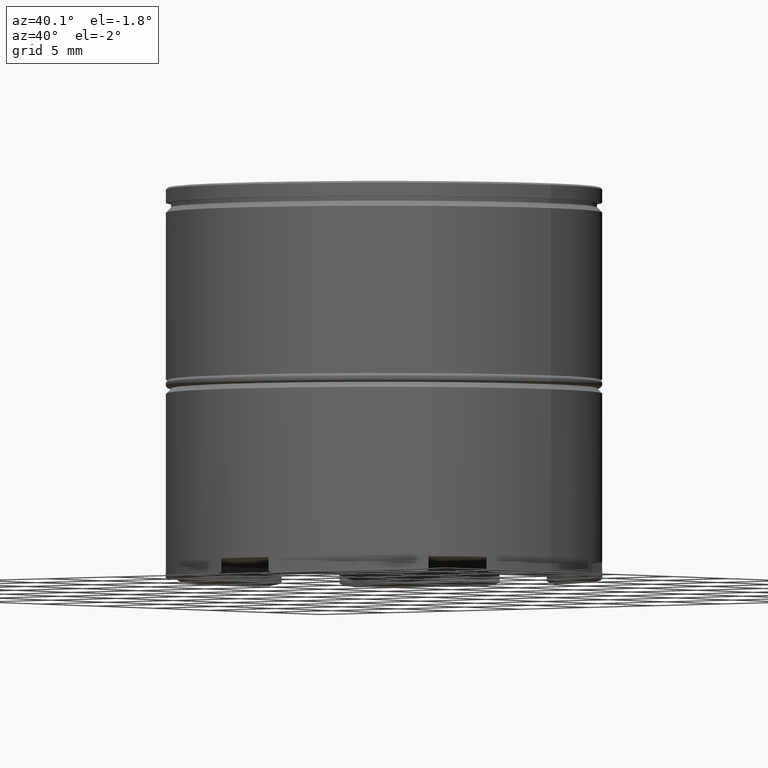
[diagram: clean part render]
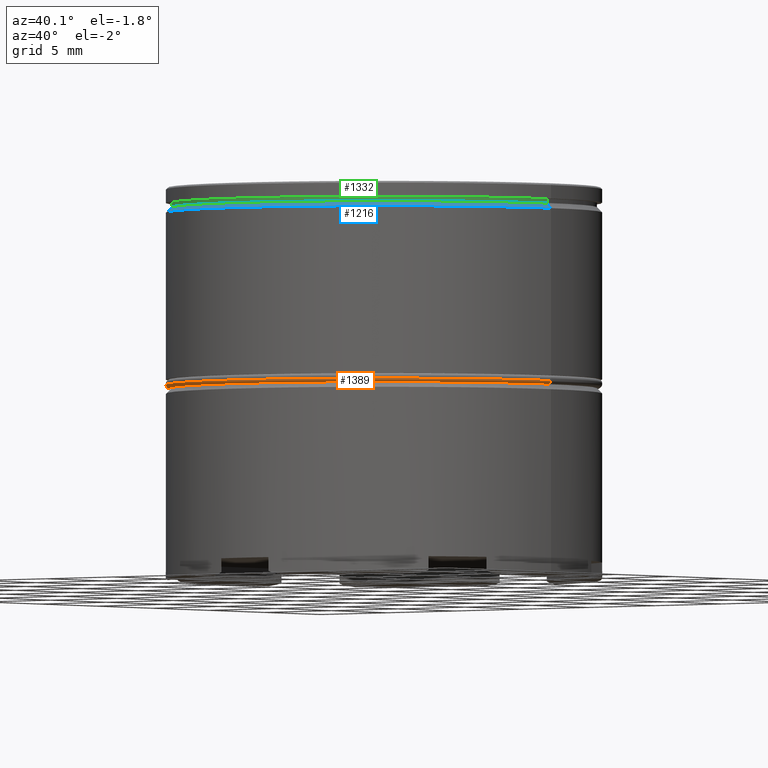
[diagram: same view with three faces highlighted in distinct colors, each labeled with its STEP entity id]
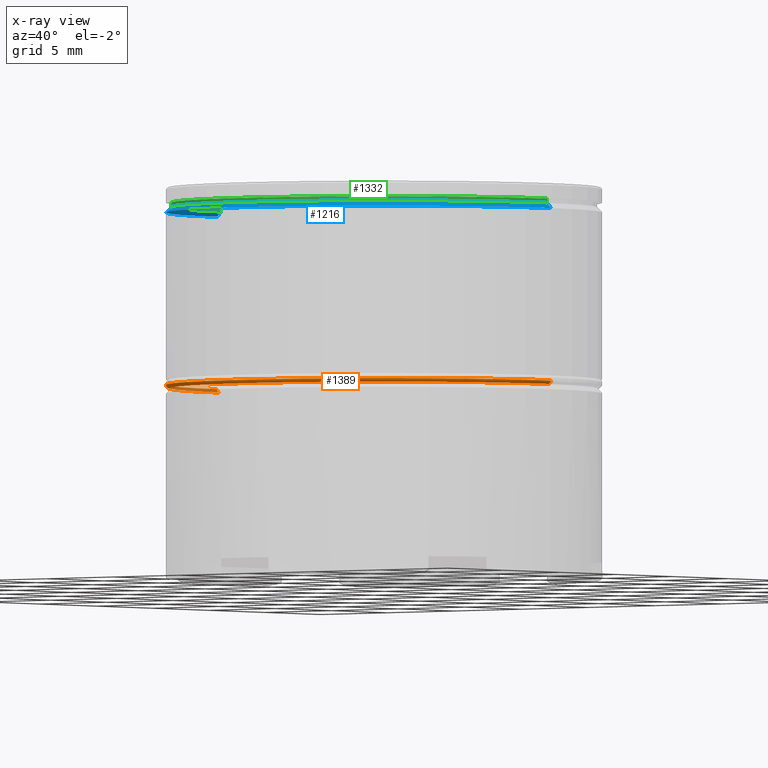
[diagram: x-ray of the same camera — body ghosted, the three highlighted faces saturated]
A machine part, auxiliary view with three faces highlighted in distinct colors.
The next image is the same camera in x-ray (body ghosted, the three faces saturated) — at least one of them is partly hidden behind the body in this view.
Their STEP definitions:

[orange] entity #1389 — the highlighted toroidal blend (fillet) surface has major radius 12.3 mm and minor (blend) radius 0.2 mm.
#21 = EDGE_CURVE ( 'NONE', #110, #364, #291, .T. ) ;
#50 = DIRECTION ( 'NONE',  ( 1.000000000000000000, 0.000000000000000000, 0.000000000000000000 ) ) ;
#89 = DIRECTION ( 'NONE',  ( -0.000000000000000000, -0.000000000000000000, -1.000000000000000000 ) ) ;
#110 = VERTEX_POINT ( 'NONE', #936 ) ;
#126 = CARTESIAN_POINT ( 'NONE',  ( 12.30000000000000071, 0.000000000000000000, -11.29999999999999716 ) ) ;
#175 = CARTESIAN_POINT ( 'NONE',  ( 0.000000000000000000, 0.000000000000000000, -11.29999999999999716 ) ) ;
#183 = CIRCLE ( 'NONE', #1316, 0.2000000000000005107 ) ;
#224 = DIRECTION ( 'NONE',  ( 0.000000000000000000, 0.000000000000000000, 1.000000000000000000 ) ) ;
#225 = CARTESIAN_POINT ( 'NONE',  ( 0.000000000000000000, 0.000000000000000000, -11.49999999999999822 ) ) ;
#266 = CARTESIAN_POINT ( 'NONE',  ( -12.30000000000000071, 1.518562030942717967E-15, -11.49999999999999822 ) ) ;
#270 = AXIS2_PLACEMENT_3D ( 'NONE', #225, #89, #475 ) ;
#282 = EDGE_CURVE ( 'NONE', #478, #364, #1287, .T. ) ;
#291 = CIRCLE ( 'NONE', #1244, 0.2000000000000005107 ) ;
#364 = VERTEX_POINT ( 'NONE', #1143 ) ;
#456 = ORIENTED_EDGE ( 'NONE', *, *, #282, .F. ) ;
#475 = DIRECTION ( 'NONE',  ( 1.000000000000000000, 0.000000000000000000, 0.000000000000000000 ) ) ;
#478 = VERTEX_POINT ( 'NONE', #1180 ) ;
#509 = TOROIDAL_SURFACE ( 'NONE', #1029, 12.30000000000000071, 0.2000000000000000111 ) ;
#601 = AXIS2_PLACEMENT_3D ( 'NONE', #1346, #224, #834 ) ;
#694 = DIRECTION ( 'NONE',  ( 0.000000000000000000, 0.000000000000000000, 1.000000000000000000 ) ) ;
#777 = VERTEX_POINT ( 'NONE', #266 ) ;
#781 = CARTESIAN_POINT ( 'NONE',  ( -12.30000000000000071, 1.506315562951244413E-15, -11.29999999999999716 ) ) ;
#829 = ORIENTED_EDGE ( 'NONE', *, *, #1195, .F. ) ;
#834 = DIRECTION ( 'NONE',  ( 1.000000000000000000, 0.000000000000000000, 0.000000000000000000 ) ) ;
#907 = ORIENTED_EDGE ( 'NONE', *, *, #21, .T. ) ;
#936 = CARTESIAN_POINT ( 'NONE',  ( 12.30000000000000071, 0.000000000000000000, -11.49999999999999822 ) ) ;
#1015 = DIRECTION ( 'NONE',  ( 0.000000000000000000, -1.000000000000000000, 0.000000000000000000 ) ) ;
#1029 = AXIS2_PLACEMENT_3D ( 'NONE', #175, #694, #50 ) ;
#1046 = EDGE_CURVE ( 'NONE', #110, #777, #1405, .T. ) ;
#1143 = CARTESIAN_POINT ( 'NONE',  ( 12.50000000000000000, 0.000000000000000000, -11.29999999999999716 ) ) ;
#1145 = DIRECTION ( 'NONE',  ( -1.000000000000000000, 1.224646799147353207E-16, 0.000000000000000000 ) ) ;
#1152 = DIRECTION ( 'NONE',  ( 1.224646799147353207E-16, 1.000000000000000000, -0.000000000000000000 ) ) ;
#1178 = EDGE_LOOP ( 'NONE', ( #829, #1589, #907, #456 ) ) ;
#1180 = CARTESIAN_POINT ( 'NONE',  ( -12.50000000000000000, 1.530808498934191521E-15, -11.29999999999999716 ) ) ;
#1195 = EDGE_CURVE ( 'NONE', #777, #478, #183, .T. ) ;
#1244 = AXIS2_PLACEMENT_3D ( 'NONE', #126, #1015, #1515 ) ;
#1287 = CIRCLE ( 'NONE', #601, 12.50000000000000000 ) ;
#1316 = AXIS2_PLACEMENT_3D ( 'NONE', #781, #1152, #1145 ) ;
#1346 = CARTESIAN_POINT ( 'NONE',  ( 0.000000000000000000, 0.000000000000000000, -11.29999999999999716 ) ) ;
#1389 = ADVANCED_FACE ( 'NONE', ( #1550 ), #509, .T. ) ;
#1405 = CIRCLE ( 'NONE', #270, 12.30000000000000071 ) ;
#1515 = DIRECTION ( 'NONE',  ( 0.000000000000000000, 0.000000000000000000, -1.000000000000000000 ) ) ;
#1550 = FACE_OUTER_BOUND ( 'NONE', #1178, .T. ) ;
#1589 = ORIENTED_EDGE ( 'NONE', *, *, #1046, .F. ) ;

[blue] entity #1216 — the highlighted conical surface has half-angle 45 deg.
#23 = AXIS2_PLACEMENT_3D ( 'NONE', #953, #833, #1319 ) ;
#59 = CARTESIAN_POINT ( 'NONE',  ( -12.20000000000000107, 1.494069094959771056E-15, -1.125000000000000222 ) ) ;
#63 = VERTEX_POINT ( 'NONE', #59 ) ;
#302 = LINE ( 'NONE', #555, #1166 ) ;
#318 = ORIENTED_EDGE ( 'NONE', *, *, #1439, .F. ) ;
#384 = CONICAL_SURFACE ( 'NONE', #1016, 12.19999999999999218, 0.7853981633974453924 ) ;
#396 = DIRECTION ( 'NONE',  ( -0.000000000000000000, -0.000000000000000000, 1.000000000000000000 ) ) ;
#545 = EDGE_CURVE ( 'NONE', #63, #1334, #926, .T. ) ;
#548 = DIRECTION ( 'NONE',  ( 0.7071067811865454633, 8.659560562354908206E-17, -0.7071067811865495711 ) ) ;
#555 = CARTESIAN_POINT ( 'NONE',  ( 12.19999999999999218, 1.494069094959770070E-15, -1.125000000000000222 ) ) ;
#602 = EDGE_LOOP ( 'NONE', ( #958, #1493, #719, #318 ) ) ;
#719 = ORIENTED_EDGE ( 'NONE', *, *, #545, .T. ) ;
#803 = DIRECTION ( 'NONE',  ( -0.7071067811865454633, 0.000000000000000000, -0.7071067811865495711 ) ) ;
#833 = DIRECTION ( 'NONE',  ( 0.000000000000000000, 0.000000000000000000, -1.000000000000000000 ) ) ;
#903 = DIRECTION ( 'NONE',  ( 0.000000000000000000, 0.000000000000000000, -1.000000000000000000 ) ) ;
#926 = LINE ( 'NONE', #1323, #1479 ) ;
#953 = CARTESIAN_POINT ( 'NONE',  ( 0.000000000000000000, 0.000000000000000000, -1.425000000000010481 ) ) ;
#958 = ORIENTED_EDGE ( 'NONE', *, *, #1593, .F. ) ;
#1002 = DIRECTION ( 'NONE',  ( -1.000000000000000000, 0.000000000000000000, 0.000000000000000000 ) ) ;
#1016 = AXIS2_PLACEMENT_3D ( 'NONE', #1267, #903, #1002 ) ;
#1022 = FACE_OUTER_BOUND ( 'NONE', #602, .T. ) ;
#1077 = CARTESIAN_POINT ( 'NONE',  ( -12.50000000000000000, 1.530808498934191521E-15, -1.425000000000010481 ) ) ;
#1166 = VECTOR ( 'NONE', #548, 1000.000000000000000 ) ;
#1173 = CARTESIAN_POINT ( 'NONE',  ( 12.50000000000000000, 0.000000000000000000, -1.425000000000010481 ) ) ;
#1211 = AXIS2_PLACEMENT_3D ( 'NONE', #1532, #396, #1276 ) ;
#1216 = ADVANCED_FACE ( 'NONE', ( #1022 ), #384, .T. ) ;
#1267 = CARTESIAN_POINT ( 'NONE',  ( 0.000000000000000000, 0.000000000000000000, -1.125000000000000222 ) ) ;
#1276 = DIRECTION ( 'NONE',  ( 1.000000000000000000, 0.000000000000000000, 0.000000000000000000 ) ) ;
#1318 = VERTEX_POINT ( 'NONE', #1173 ) ;
#1319 = DIRECTION ( 'NONE',  ( 1.000000000000000000, 0.000000000000000000, 0.000000000000000000 ) ) ;
#1323 = CARTESIAN_POINT ( 'NONE',  ( -12.19999999999999218, 0.000000000000000000, -1.125000000000000222 ) ) ;
#1334 = VERTEX_POINT ( 'NONE', #1077 ) ;
#1439 = EDGE_CURVE ( 'NONE', #1318, #1334, #1442, .T. ) ;
#1442 = CIRCLE ( 'NONE', #23, 12.50000000000000000 ) ;
#1467 = CARTESIAN_POINT ( 'NONE',  ( 12.20000000000000107, 0.000000000000000000, -1.125000000000000222 ) ) ;
#1479 = VECTOR ( 'NONE', #803, 1000.000000000000000 ) ;
#1493 = ORIENTED_EDGE ( 'NONE', *, *, #1543, .F. ) ;
#1532 = CARTESIAN_POINT ( 'NONE',  ( 0.000000000000000000, 0.000000000000000000, -1.125000000000000222 ) ) ;
#1543 = EDGE_CURVE ( 'NONE', #63, #1622, #1576, .T. ) ;
#1576 = CIRCLE ( 'NONE', #1211, 12.20000000000000107 ) ;
#1593 = EDGE_CURVE ( 'NONE', #1622, #1318, #302, .T. ) ;
#1622 = VERTEX_POINT ( 'NONE', #1467 ) ;

[green] entity #1332 — the highlighted cylindrical surface (partial cylindrical patch) has radius 12.2 mm, axis along (-0, -0, 1).
#22 = EDGE_LOOP ( 'NONE', ( #471, #221, #533, #1279 ) ) ;
#51 = EDGE_CURVE ( 'NONE', #788, #1228, #832, .T. ) ;
#59 = CARTESIAN_POINT ( 'NONE',  ( -12.20000000000000107, 1.494069094959771056E-15, -1.125000000000000222 ) ) ;
#63 = VERTEX_POINT ( 'NONE', #59 ) ;
#221 = ORIENTED_EDGE ( 'NONE', *, *, #1543, .T. ) ;
#396 = DIRECTION ( 'NONE',  ( -0.000000000000000000, -0.000000000000000000, 1.000000000000000000 ) ) ;
#455 = DIRECTION ( 'NONE',  ( -0.000000000000000000, -0.000000000000000000, 1.000000000000000000 ) ) ;
#463 = EDGE_CURVE ( 'NONE', #63, #788, #1425, .T. ) ;
#471 = ORIENTED_EDGE ( 'NONE', *, *, #463, .F. ) ;
#519 = CARTESIAN_POINT ( 'NONE',  ( 12.20000000000000107, 0.000000000000000000, -0.8749999999999998890 ) ) ;
#533 = ORIENTED_EDGE ( 'NONE', *, *, #1160, .T. ) ;
#561 = CARTESIAN_POINT ( 'NONE',  ( 0.000000000000000000, 0.000000000000000000, -0.8749999999999998890 ) ) ;
#787 = AXIS2_PLACEMENT_3D ( 'NONE', #1419, #1201, #1070 ) ;
#788 = VERTEX_POINT ( 'NONE', #1156 ) ;
#832 = CIRCLE ( 'NONE', #1584, 12.20000000000000107 ) ;
#884 = DIRECTION ( 'NONE',  ( -0.000000000000000000, -0.000000000000000000, 1.000000000000000000 ) ) ;
#928 = FACE_OUTER_BOUND ( 'NONE', #22, .T. ) ;
#935 = CYLINDRICAL_SURFACE ( 'NONE', #787, 12.20000000000000107 ) ;
#1013 = LINE ( 'NONE', #1522, #1099 ) ;
#1036 = CARTESIAN_POINT ( 'NONE',  ( -12.20000000000000107, 1.494069094959771056E-15, 0.000000000000000000 ) ) ;
#1070 = DIRECTION ( 'NONE',  ( 1.000000000000000000, 0.000000000000000000, 0.000000000000000000 ) ) ;
#1099 = VECTOR ( 'NONE', #884, 1000.000000000000000 ) ;
#1156 = CARTESIAN_POINT ( 'NONE',  ( -12.20000000000000107, 1.494069094959771056E-15, -0.8749999999999998890 ) ) ;
#1160 = EDGE_CURVE ( 'NONE', #1622, #1228, #1013, .T. ) ;
#1175 = DIRECTION ( 'NONE',  ( -0.000000000000000000, -0.000000000000000000, 1.000000000000000000 ) ) ;
#1201 = DIRECTION ( 'NONE',  ( -0.000000000000000000, -0.000000000000000000, 1.000000000000000000 ) ) ;
#1211 = AXIS2_PLACEMENT_3D ( 'NONE', #1532, #396, #1276 ) ;
#1228 = VERTEX_POINT ( 'NONE', #519 ) ;
#1276 = DIRECTION ( 'NONE',  ( 1.000000000000000000, 0.000000000000000000, 0.000000000000000000 ) ) ;
#1279 = ORIENTED_EDGE ( 'NONE', *, *, #51, .F. ) ;
#1332 = ADVANCED_FACE ( 'NONE', ( #928 ), #935, .T. ) ;
#1419 = CARTESIAN_POINT ( 'NONE',  ( 0.000000000000000000, 0.000000000000000000, 0.000000000000000000 ) ) ;
#1425 = LINE ( 'NONE', #1036, #1557 ) ;
#1429 = DIRECTION ( 'NONE',  ( 1.000000000000000000, 0.000000000000000000, 0.000000000000000000 ) ) ;
#1467 = CARTESIAN_POINT ( 'NONE',  ( 12.20000000000000107, 0.000000000000000000, -1.125000000000000222 ) ) ;
#1522 = CARTESIAN_POINT ( 'NONE',  ( 12.20000000000000107, 0.000000000000000000, 0.000000000000000000 ) ) ;
#1532 = CARTESIAN_POINT ( 'NONE',  ( 0.000000000000000000, 0.000000000000000000, -1.125000000000000222 ) ) ;
#1543 = EDGE_CURVE ( 'NONE', #63, #1622, #1576, .T. ) ;
#1557 = VECTOR ( 'NONE', #455, 1000.000000000000000 ) ;
#1576 = CIRCLE ( 'NONE', #1211, 12.20000000000000107 ) ;
#1584 = AXIS2_PLACEMENT_3D ( 'NONE', #561, #1175, #1429 ) ;
#1622 = VERTEX_POINT ( 'NONE', #1467 ) ;